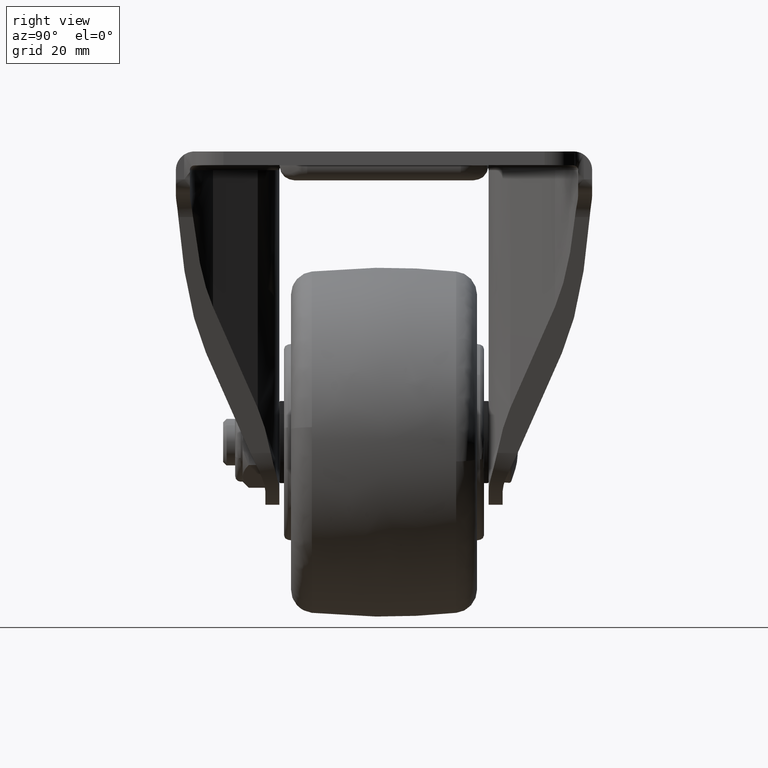
[diagram: clean part render]
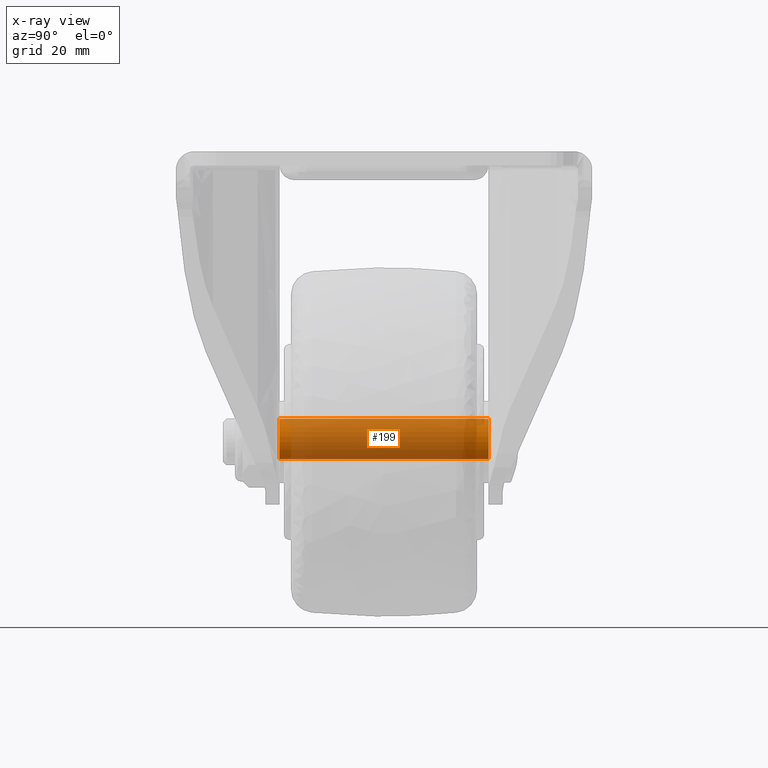
[diagram: x-ray — body ghosted, one internal face saturated and labeled with its STEP entity id]
A machine part, right view, then the same camera in x-ray: the body is ghosted and one INTERNAL B-rep face — a face not visible from any outside direction — is saturated and labeled: STEP entity #199.
In plain terms, the highlighted face is a freeform B-spline surface patch.
Its self-contained STEP definition (entity closure, byte-faithful):
#23=CARTESIAN_POINT('',(-3.441772501507126,-22.499999999998391,3.626871634279587));
#24=VERTEX_POINT('',#23);
#50=CARTESIAN_POINT('',(3.441772501507137,-22.499999999998391,-3.626871634279599));
#51=VERTEX_POINT('',#50);
#60=CARTESIAN_POINT('',(3.441772502586665,22.500000000000000,-3.626871633255167));
#61=VERTEX_POINT('',#60);
#62=CARTESIAN_POINT('',(3.441772502586665,22.500000000000000,-3.626871633255167));
#63=CARTESIAN_POINT('',(3.441772501507137,-22.499999999998391,-3.626871634279599));
#64=QUASI_UNIFORM_CURVE('',1,(#62,#63),.UNSPECIFIED.,.F.,.U.);
#65=EDGE_CURVE('',#61,#51,#64,.T.);
#91=CARTESIAN_POINT('',(-3.441772502586654,22.500000000000000,3.626871633255155));
#92=VERTEX_POINT('',#91);
#102=CARTESIAN_POINT('',(-3.441772502586654,22.500000000000000,3.626871633255155));
#103=CARTESIAN_POINT('',(-3.441772501507126,-22.499999999998391,3.626871634279587));
#104=QUASI_UNIFORM_CURVE('',1,(#102,#103),.UNSPECIFIED.,.F.,.U.);
#105=EDGE_CURVE('',#92,#24,#104,.T.);
#110=CARTESIAN_POINT('',(3.441772878468769,23.625000000000000,-3.626871855061437));
#111=CARTESIAN_POINT('',(7.068644733530205,23.625000000000004,-0.185098976592668));
#112=CARTESIAN_POINT('',(3.626871855061437,23.625000000000000,3.441772878468769));
#113=CARTESIAN_POINT('',(0.185098976592668,23.625000000000004,7.068644733530205));
#114=CARTESIAN_POINT('',(-3.441772878468769,23.625000000000000,3.626871855061437));
#115=CARTESIAN_POINT('',(3.441772878468769,-23.653124999999999,-3.626871855061437));
#116=CARTESIAN_POINT('',(7.068644733530205,-23.653125000000003,-0.185098976592668));
#117=CARTESIAN_POINT('',(3.626871855061437,-23.653124999999999,3.441772878468769));
#118=CARTESIAN_POINT('',(0.185098976592668,-23.653125000000003,7.068644733530205));
#119=CARTESIAN_POINT('',(-3.441772878468769,-23.653124999999999,3.626871855061437));
#127=(BOUNDED_SURFACE()B_SPLINE_SURFACE(2,1,((#110,#115),(#111,#116),(#112,#117),(#113,#118),(#114,#119)),.UNSPECIFIED.,.F.,.F.,.U.)B_SPLINE_SURFACE_WITH_KNOTS((3,2,3),(2,2),(0.0,8.284271247461897,16.568542494923790),(0.0,47.278125000000010),.UNSPECIFIED.)GEOMETRIC_REPRESENTATION_ITEM()RATIONAL_B_SPLINE_SURFACE(((1.0,1.0),(0.707106781186548,0.707106781186548),(1.0,1.0),(0.707106781186548,0.707106781186548),(1.0,1.0)))REPRESENTATION_ITEM('')SURFACE());
#128=CARTESIAN_POINT('',(0.0,-22.500000000000000,5.0));
#129=VERTEX_POINT('',#128);
#130=CARTESIAN_POINT('',(0.0,-22.500000000000000,5.0));
#131=CARTESIAN_POINT('',(-0.593212490345162,-22.499999999999741,5.000473727655947));
#132=CARTESIAN_POINT('',(-1.858171476433854,-22.499999999999130,4.772004330835328));
#133=CARTESIAN_POINT('',(-2.954633660904592,-22.499999999998590,4.090285432285020));
#134=CARTESIAN_POINT('',(-3.441772501507126,-22.499999999998391,3.626871634279587));
#135=B_SPLINE_CURVE_WITH_KNOTS('',3,(#130,#131,#132,#133,#134),.UNSPECIFIED.,.F.,.U.,(4,1,4),(0.000000073887404,1.779476149236811,3.796179857159324),.UNSPECIFIED.);
#136=EDGE_CURVE('',#129,#24,#135,.T.);
#137=ORIENTED_EDGE('',*,*,#136,.T.);
#138=ORIENTED_EDGE('',*,*,#105,.F.);
#139=CARTESIAN_POINT('',(0.0,22.500000000000000,5.0));
#140=VERTEX_POINT('',#139);
#141=CARTESIAN_POINT('',(0.0,22.500000000000000,5.0));
#142=CARTESIAN_POINT('',(-0.514077113690874,22.500000000000021,5.000210475102758));
#143=CARTESIAN_POINT('',(-1.423439236747849,22.499999999999911,4.858524863900856));
#144=CARTESIAN_POINT('',(-2.583228055715924,22.500000000000110,4.330590787604653));
#145=CARTESIAN_POINT('',(-3.183656211197408,22.499999999999869,3.871878819276667));
#146=CARTESIAN_POINT('',(-3.441772502586654,22.500000000000000,3.626871633255155));
#147=B_SPLINE_CURVE_WITH_KNOTS('',3,(#141,#142,#143,#144,#145,#146),.UNSPECIFIED.,.F.,.U.,(4,1,1,4),(0.000000073887183,1.542224017706003,2.728502526428706,3.796179858647663),.UNSPECIFIED.);
#148=EDGE_CURVE('',#140,#92,#147,.T.);
#149=ORIENTED_EDGE('',*,*,#148,.F.);
#150=CARTESIAN_POINT('',(4.999999999999718,22.500000000000000,0.000001680834415));
#151=VERTEX_POINT('',#150);
#152=CARTESIAN_POINT('',(4.999999999999718,22.500000000000000,0.000001680834415));
#153=CARTESIAN_POINT('',(5.000557262161427,22.500000000000028,0.613667538487958));
#154=CARTESIAN_POINT('',(4.778785236340031,22.499999999999901,1.799578977390386));
#155=CARTESIAN_POINT('',(3.989443538822719,22.500000000000071,3.117104678331254));
#156=CARTESIAN_POINT('',(3.095927801625614,22.499999999999972,3.967099258447501));
#157=CARTESIAN_POINT('',(2.262577388604484,22.500000000000089,4.494912107611804));
#158=CARTESIAN_POINT('',(1.227113872790368,22.499999999999829,4.894336668708691));
#159=CARTESIAN_POINT('',(0.449982588306962,22.500000000000188,5.000155518490152));
#160=CARTESIAN_POINT('',(0.0,22.500000000000000,5.0));
#161=B_SPLINE_CURVE_WITH_KNOTS('',3,(#152,#153,#154,#155,#156,#157,#158,#159,#160),.UNSPECIFIED.,.F.,.U.,(4,1,1,1,1,1,4),(0.000000203503721,1.840817027094086,3.558976413918298,4.540636506402918,5.522457294975452,6.504243683813695,7.854177774308236),.UNSPECIFIED.);
#162=EDGE_CURVE('',#151,#140,#161,.T.);
#163=ORIENTED_EDGE('',*,*,#162,.F.);
#164=CARTESIAN_POINT('',(3.441772502586665,22.500000000000000,-3.626871633255167));
#165=CARTESIAN_POINT('',(3.687087766151893,22.500000000000000,-3.394120927371412));
#166=CARTESIAN_POINT('',(4.157932043592589,22.500000000000050,-2.846409214578547));
#167=CARTESIAN_POINT('',(4.804333075923611,22.499999999999918,-1.648131229233313));
#168=CARTESIAN_POINT('',(5.000623875559470,22.500000000000099,-0.634149967264018));
#169=CARTESIAN_POINT('',(4.999999999999718,22.500000000000000,0.000001680834415));
#170=B_SPLINE_CURVE_WITH_KNOTS('',3,(#164,#165,#166,#167,#168,#169),.UNSPECIFIED.,.F.,.U.,(4,1,1,4),(0.000000064122950,1.014500265345377,2.155803856772708,4.058000869145772),.UNSPECIFIED.);
#171=EDGE_CURVE('',#61,#151,#170,.T.);
#172=ORIENTED_EDGE('',*,*,#171,.F.);
#173=ORIENTED_EDGE('',*,*,#65,.T.);
#174=CARTESIAN_POINT('',(4.999999999999718,-22.500000000000000,0.000001680834415));
#175=VERTEX_POINT('',#174);
#176=CARTESIAN_POINT('',(3.441772501507137,-22.499999999998391,-3.626871634279599));
#177=CARTESIAN_POINT('',(3.687093743790065,-22.499999999998501,-3.394127038156481));
#178=CARTESIAN_POINT('',(4.157923877801443,-22.499999999998739,-2.846401162062172));
#179=CARTESIAN_POINT('',(4.804339102462055,-22.499999999999218,-1.648138119144459));
#180=CARTESIAN_POINT('',(5.000621592188866,-22.499999999999790,-0.634146387673027));
#181=CARTESIAN_POINT('',(4.999999999999718,-22.500000000000000,0.000001680834415));
#182=B_SPLINE_CURVE_WITH_KNOTS('',3,(#176,#177,#178,#179,#180,#181),.UNSPECIFIED.,.F.,.U.,(4,1,1,4),(0.000000064122866,1.014500265717430,2.155803857563377,4.058000870634128),.UNSPECIFIED.);
#183=EDGE_CURVE('',#51,#175,#182,.T.);
#184=ORIENTED_EDGE('',*,*,#183,.T.);
#185=CARTESIAN_POINT('',(4.999999999999718,-22.500000000000000,0.000001680834415));
#186=CARTESIAN_POINT('',(5.000557262161427,-22.500000000000028,0.613667538487958));
#187=CARTESIAN_POINT('',(4.778785236340031,-22.499999999999901,1.799578977390386));
#188=CARTESIAN_POINT('',(3.989443538822719,-22.500000000000071,3.117104678331254));
#189=CARTESIAN_POINT('',(3.095927801625614,-22.499999999999972,3.967099258447501));
#190=CARTESIAN_POINT('',(2.262577388604484,-22.500000000000089,4.494912107611804));
#191=CARTESIAN_POINT('',(1.227113872790368,-22.499999999999829,4.894336668708691));
#192=CARTESIAN_POINT('',(0.449982588306962,-22.500000000000188,5.000155518490152));
#193=CARTESIAN_POINT('',(0.0,-22.500000000000000,5.0));
#194=B_SPLINE_CURVE_WITH_KNOTS('',3,(#185,#186,#187,#188,#189,#190,#191,#192,#193),.UNSPECIFIED.,.F.,.U.,(4,1,1,1,1,1,4),(0.000000203503721,1.840817027094086,3.558976413918298,4.540636506402918,5.522457294975452,6.504243683813695,7.854177774308236),.UNSPECIFIED.);
#195=EDGE_CURVE('',#175,#129,#194,.T.);
#196=ORIENTED_EDGE('',*,*,#195,.T.);
#197=EDGE_LOOP('',(#137,#138,#149,#163,#172,#173,#184,#196));
#198=FACE_OUTER_BOUND('',#197,.T.);
#199=ADVANCED_FACE('',(#198),#127,.F.);